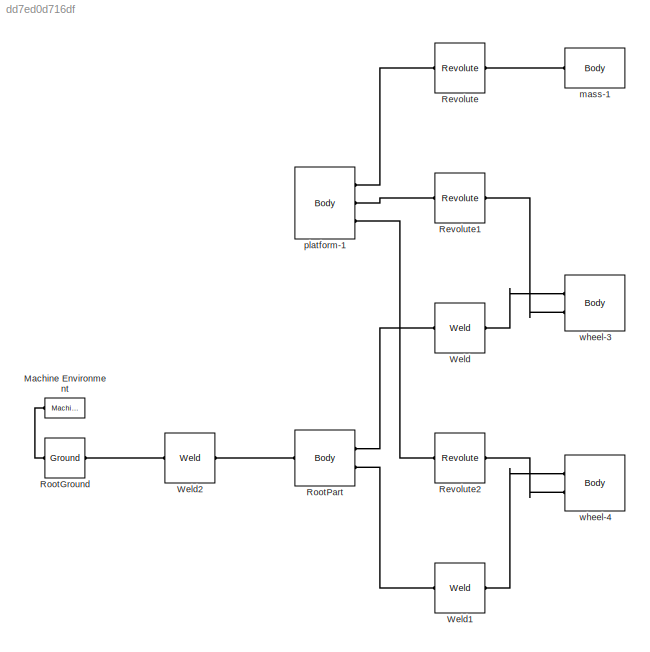
MODEL slx_dd7ed0d716df
KIND model
BLOCK [Reference] Machine Environment  REF=mblibv1/Bodies/Machine
Environment
  AnalysisType = Forward dynamics
  AngularAssemblyTolerance = 1e-3
  AngularAssemblyToleranceUnits = rad
  BodyColorSelMode = Use model default
  BodyVisualizationType = Use model default body geometries
  ClassName = Environment
  ConstraintAbsTolerance = 1e-4
  ConstraintRelTolerance = 1e-4
  ConstraintSolverType = Stabilizing
  DefaultBodyColor = [1 0 0]
  DialogTemplateClass = MECH.MachineEnvironment
  Dimensionality = Auto-detect
  Gravity = [0 -9.81 0]
  GravityAsSignal = off
  GravityUnits = m/s^2
  LinearAssemblyTolerance = 1e-3
  LinearAssemblyToleranceUnits = m
  PerturbationSize = 1e-5
  PhysicalDomain = Mechanical
  PortType = env
  Ports = [0, 0, 0, 0, 0, 0, 1]
  RedundancyAnalysisTolerance = 1e-14
  RedundancyAnalysisToleranceType = Automatically select tolerance
  SourceBlock = mblibv1/Bodies/Machine\nEnvironment
  SourceType = Machine Environment
  StatePerturbationType = Fixed
  SyncWhenCopied = off
  UseRobustSingularityHandling = off
  VisualizeMachine = on
BLOCK [Reference] Revolute  REF=mblibv1/Joints/Revolute
  ClassName = Joint
  CutJoint = off
  DialogClass = JointBlock
  LConnTagsString = __newl0
  MarkAsCut = off
  NumSAPorts = 0
  PMImportedID = mass-1:-:platform-1
  Ports = [0, 0, 0, 0, 0, 1, 1]
  PrimitiveProps = R1$WORLD$[0,0.999884,-0.0152006]$revolute
  Primitives = prismatic
  R1Axis = [0,0.999884,-0.0152006]
  RConnTagsString = __newr0
  SourceBlock = mblibv1/Joints/Revolute
  SourceType = Revolute
  UpdateFromCAD = on
BLOCK [Reference] Revolute1  REF=mblibv1/Joints/Revolute
  ClassName = Joint
  CutJoint = off
  DialogClass = JointBlock
  LConnTagsString = __newl0
  MarkAsCut = off
  NumSAPorts = 0
  PMImportedID = platform-1:-:wheel-3
  Ports = [0, 0, 0, 0, 0, 1, 1]
  PrimitiveProps = R1$WORLD$[1,0,0]$revolute
  Primitives = prismatic
  R1Axis = [1,0,0]
  RConnTagsString = __newr0
  SourceBlock = mblibv1/Joints/Revolute
  SourceType = Revolute
  UpdateFromCAD = on
BLOCK [Reference] Revolute2  REF=mblibv1/Joints/Revolute
  ClassName = Joint
  CutJoint = off
  DialogClass = JointBlock
  LConnTagsString = __newl0
  MarkAsCut = off
  NumSAPorts = 0
  PMImportedID = platform-1:-:wheel-4
  Ports = [0, 0, 0, 0, 0, 1, 1]
  PrimitiveProps = R1$WORLD$[-1,0,0]$revolute
  Primitives = prismatic
  R1Axis = [-1,0,0]
  RConnTagsString = __newr0
  SourceBlock = mblibv1/Joints/Revolute
  SourceType = Revolute
  UpdateFromCAD = on
BLOCK [Reference] RootGround  REF=mblibv1/Bodies/Ground
  ClassName = Ground
  CoordPosition = [0,0.276214,-0.00378102]
  CoordPositionUnits = m
  DialogClass = GroundBlock
  LeftPortType = env
  MachineId = [0 0]
  PMImportedID = RootGround
  PhysicalDomain = Mechanical
  Ports = [0, 0, 0, 0, 0, 1, 1]
  RightPortType = workingframe
  ShowEnvPort = on
  SourceBlock = mblibv1/Bodies/Ground
  SourceType = Ground
  StateVectorMgrId = -1
  UpdateFromCAD = on
  UserDataPersistent = on
BLOCK [Reference] RootPart  REF=mblibv1/Bodies/Body
  AttachedToCS = CS1
  BodyColor = [1;0;0]
  BodyColorSelMode = MACHINE_DEFAULT
  CG = Right$CG$[0 0.276214 -0.00378102]$WORLD$WORLD$m$[1 0 0;0 1 0;0 0 1]$3x3 Transform$rad$WORLD$false$Assem1/RootPart::CG(AUTOGEN)
  CGPos = [0 0.276214 -0.00378102]
  CGRot = [1 0 0;0 1 0;0 0 1]
  CS0Pos = []
  CS0Rot = []
  CS10Pos = []
  CS10Rot = []
  CS11Pos = []
  CS11Rot = []
  CS12Pos = []
  CS12Rot = []
  CS13Pos = []
  CS13Rot = []
  CS14Pos = []
  CS14Rot = []
  CS15Pos = []
  CS15Rot = []
  CS16Pos = []
  CS16Rot = []
  CS17Pos = []
  CS17Rot = []
  CS18Pos = []
  CS18Rot = []
  CS19Pos = []
  CS19Rot = []
  CS1Pos = [0 0 0]
  CS1Rot = [1 0 0;0 1 0;0 0 1]
  CS20Pos = []
  CS20Rot = []
  CS2Pos = [-0.15 0.0275 0]
  CS2Rot = [1 0 0;0 1 0;0 0 1]
  CS3Pos = [0.15 0.0275 0]
  CS3Rot = [1 0 0;0 1 0;0 0 1]
  CS4Pos = [0 0.276214 -0.00378102]
  CS4Rot = [1 0 0;0 1 0;0 0 1]
  CS5Pos = []
  CS5Rot = []
  CS6Pos = []
  CS6Rot = []
  CS7Pos = []
  CS7Rot = []
  CS8Pos = []
  CS8Rot = []
  CS9Pos = []
  CS9Rot = []
  ClassName = Body
  Density = 1
  DensityUnits = kg/m^3
  DensityUse = false
  DialogClass = MechanicalBodyBlock
  GraphicsMode = MACHINE_DEFAULT
  Inertia = [0,0,0;0,0,0;0,0,0]
  InertiaUnits = kg*m^2
  LConnTagsString = CS4
  Mass = 0
  MassUnits = kg
  PMImportedID = Assem1/RootPart
  Ports = [0, 0, 0, 0, 0, 1, 2]
  RConnTagsString = CS2|CS3
  Shape = Cylinder
  ShapeDims = [1 1]
  ShapeUnits = m
  ShapeUse = false
  SourceBlock = mblibv1/Bodies/Body
  SourceType = Body
  UpdateFromCAD = on
  WorkingFrames = Right$CS1$[0 0 0]$WORLD$WORLD$m$[1 0 0;0 1 0;0 0 1]$3x3 Transform$rad$WORLD$false$Assem1/RootPart::CS1(AUTOGEN)#Right$CS2$[-0.15 0.0275 0]$WORLD$WORLD$m$[1 0 0;0 1 0;0 0 1]$3x3 Transform$rad$WORLD$true$Assem1/RootPart:-:wheel-3::Assem1/RootPart(AUTOGEN)#Right$CS3$[0.15 0.0275 0]$WORLD$WORLD$m$[1 0 0;0 1 0;0 0 1]$3x3 Transform$rad$WORLD$true$Assem1/RootPart:-:wheel-4::Assem1/RootPart(AUTOGEN)#Left$...<+146ch>
BLOCK [Reference] Weld  REF=mblibv1/Joints/Weld
  ClassName = Joint
  CutJoint = off
  DialogClass = JointBlock
  LConnTagsString = __newl0
  MarkAsCut = off
  NumSAPorts = 0
  PMImportedID = Assem1/RootPart:-:wheel-3
  Ports = [0, 0, 0, 0, 0, 1, 1]
  PrimitiveProps = W$WORLD$[0.57735,0.57735,0.57735]$weld
  Primitives = weld
  RConnTagsString = __newr0
  SourceBlock = mblibv1/Joints/Weld
  SourceType = Weld
  UpdateFromCAD = on
  WAxis = [0.57735,0.57735,0.57735]
BLOCK [Reference] Weld1  REF=mblibv1/Joints/Weld
  ClassName = Joint
  CutJoint = off
  DialogClass = JointBlock
  LConnTagsString = __newl0
  MarkAsCut = off
  NumSAPorts = 0
  PMImportedID = Assem1/RootPart:-:wheel-4
  Ports = [0, 0, 0, 0, 0, 1, 1]
  PrimitiveProps = W$WORLD$[0.57735,0.57735,0.57735]$weld
  Primitives = weld
  RConnTagsString = __newr0
  SourceBlock = mblibv1/Joints/Weld
  SourceType = Weld
  UpdateFromCAD = on
  WAxis = [0.57735,0.57735,0.57735]
BLOCK [Reference] Weld2  REF=mblibv1/Joints/Weld
  ClassName = Joint
  CutJoint = off
  DialogClass = JointBlock
  LConnTagsString = __newl0
  MarkAsCut = off
  NumSAPorts = 0
  PMImportedID = Assem1/RootPart:-:RootGround
  Ports = [0, 0, 0, 0, 0, 1, 1]
  PrimitiveProps = W$WORLD$[0.57735,0.57735,0.57735]$weld
  Primitives = weld
  RConnTagsString = __newr0
  SourceBlock = mblibv1/Joints/Weld
  SourceType = Weld
  UpdateFromCAD = on
  WAxis = [0.57735,0.57735,0.57735]
BLOCK [Reference] mass-1  REF=mblibv1/Bodies/Body
  AttachedToCS = CS1
  BodyColor = [0.647059;0.619608;0.588235]
  BodyColorSelMode = COLORPALETTE
  CG = Right$CG$[0 0.569937 -0.0082463]$WORLD$WORLD$m$[1 0 0;0 -0.999884 -0.0152006;0 0.0152006 -0.999884]$3x3 Transform$rad$WORLD$false$mass-1::CG(AUTOGEN)
  CGPos = [0 0.569937 -0.0082463]
  CGRot = [1 0 0;0 -0.999884 -0.0152006;0 0.0152006 -0.999884]
  CS0Pos = []
  CS0Rot = []
  CS10Pos = []
  CS10Rot = []
  CS11Pos = []
  CS11Rot = []
  CS12Pos = []
  CS12Rot = []
  CS13Pos = []
  CS13Rot = []
  CS14Pos = []
  CS14Rot = []
  CS15Pos = []
  CS15Rot = []
  CS16Pos = []
  CS16Rot = []
  CS17Pos = []
  CS17Rot = []
  CS18Pos = []
  CS18Rot = []
  CS19Pos = []
  CS19Rot = []
  CS1Pos = [0 0.584936 -0.00847431]
  CS1Rot = [1 0 0;0 -0.999884 -0.0152006;0 0.0152006 -0.999884]
  CS20Pos = []
  CS20Rot = []
  CS2Pos = [0 0.554939 -0.00801829]
  CS2Rot = [1 0 0;0 1 0;0 0 1]
  CS3Pos = []
  CS3Rot = []
  CS4Pos = []
  CS4Rot = []
  CS5Pos = []
  CS5Rot = []
  CS6Pos = []
  CS6Rot = []
  CS7Pos = []
  CS7Rot = []
  CS8Pos = []
  CS8Rot = []
  CS9Pos = []
  CS9Rot = []
  ClassName = Body
  Density = 1
  DensityUnits = kg/m^3
  DensityUse = false
  DialogClass = MechanicalBodyBlock
  GraphicsFileName = Assem1 - mass-1.STL
  GraphicsMode = GFXFILE
  Inertia = [0.000433605,0,0;0,0.000718103,0;0,0,0.000433605]
  InertiaUnits = kg*m^2
  LConnTagsString = CS2
  Mass = 0.994043
  MassUnits = kg
  PMImportedID = mass-1
  Ports = [0, 0, 0, 0, 0, 1]
  Shape = Cylinder
  ShapeDims = [1 1]
  ShapeUnits = m
  ShapeUse = false
  SourceBlock = mblibv1/Bodies/Body
  SourceType = Body
  UpdateFromCAD = on
  WorkingFrames = Right$CS1$[0 0.584936 -0.00847431]$WORLD$WORLD$m$[1 0 0;0 -0.999884 -0.0152006;0 0.0152006 -0.999884]$3x3 Transform$rad$WORLD$false$mass-1::CS1(AUTOGEN)#Left$CS2$[0 0.554939 -0.00801829]$WORLD$WORLD$m$[1 0 0;0 1 0;0 0 1]$3x3 Transform$rad$WORLD$true$mass-1:-:platform-1::mass-1(AUTOGEN)
BLOCK [Reference] platform-1  REF=mblibv1/Bodies/Body
  AttachedToCS = CS1
  BodyColor = [0.866667;0.909804;1]
  BodyColorSelMode = COLORPALETTE
  CG = Right$CG$[0 0.16518 -0.00209305]$WORLD$WORLD$m$[1 0 0;0 -0.999884 -0.0152006;0 0.0152006 -0.999884]$3x3 Transform$rad$WORLD$false$platform-1::CG(AUTOGEN)
  CGPos = [0 0.16518 -0.00209305]
  CGRot = [1 0 0;0 -0.999884 -0.0152006;0 0.0152006 -0.999884]
  CS0Pos = []
  CS0Rot = []
  CS10Pos = []
  CS10Rot = []
  CS11Pos = []
  CS11Rot = []
  CS12Pos = []
  CS12Rot = []
  CS13Pos = []
  CS13Rot = []
  CS14Pos = []
  CS14Rot = []
  CS15Pos = []
  CS15Rot = []
  CS16Pos = []
  CS16Rot = []
  CS17Pos = []
  CS17Rot = []
  CS18Pos = []
  CS18Rot = []
  CS19Pos = []
  CS19Rot = []
  CS1Pos = [0 0.0549968 -0.000418015]
  CS1Rot = [1 0 0;0 -0.999884 -0.0152006;0 0.0152006 -0.999884]
  CS20Pos = []
  CS20Rot = []
  CS2Pos = [0 0.554939 -0.00801829]
  CS2Rot = [1 0 0;0 1 0;0 0 1]
  CS3Pos = [-0.165 0.0275 0]
  CS3Rot = [1 0 0;0 1 0;0 0 1]
  CS4Pos = [0.165 0.0275 0]
  CS4Rot = [1 0 0;0 1 0;0 0 1]
  CS5Pos = []
  CS5Rot = []
  CS6Pos = []
  CS6Rot = []
  CS7Pos = []
  CS7Rot = []
  CS8Pos = []
  CS8Rot = []
  CS9Pos = []
  CS9Rot = []
  ClassName = Body
  Density = 1
  DensityUnits = kg/m^3
  DensityUse = false
  DialogClass = MechanicalBodyBlock
  GraphicsFileName = Assem1 - platform-1.STL
  GraphicsMode = GFXFILE
  Inertia = [0.0247914,0,0;0,0.00462358,0;0,0,0.028624]
  InertiaUnits = kg*m^2
  Mass = 0.91444
  MassUnits = kg
  PMImportedID = platform-1
  Ports = [0, 0, 0, 0, 0, 0, 3]
  RConnTagsString = CS2|CS3|CS4
  Shape = Cylinder
  ShapeDims = [1 1]
  ShapeUnits = m
  ShapeUse = false
  SourceBlock = mblibv1/Bodies/Body
  SourceType = Body
  UpdateFromCAD = on
  WorkingFrames = Right$CS1$[0 0.0549968 -0.000418015]$WORLD$WORLD$m$[1 0 0;0 -0.999884 -0.0152006;0 0.0152006 -0.999884]$3x3 Transform$rad$WORLD$false$platform-1::CS1(AUTOGEN)#Right$CS2$[0 0.554939 -0.00801829]$WORLD$WORLD$m$[1 0 0;0 1 0;0 0 1]$3x3 Transform$rad$WORLD$true$mass-1:-:platform-1::platform-1(AUTOGEN)#Right$CS3$[-0.165 0.0275 0]$WORLD$WORLD$m$[1 0 0;0 1 0;0 0 1]$3x3 Transform$rad$WORLD$true$platform-1:...<+162ch>
BLOCK [Reference] wheel-3  REF=mblibv1/Bodies/Body
  AttachedToCS = CS1
  BodyColor = [0.294118;0.294118;0.294118]
  BodyColorSelMode = COLORPALETTE
  CG = Right$CG$[-0.15 0.0275 0]$WORLD$WORLD$m$[1 0 0;0 1 0;0 0 1]$3x3 Transform$rad$WORLD$false$wheel-3::CG(AUTOGEN)
  CGPos = [-0.15 0.0275 0]
  CGRot = [1 0 0;0 1 0;0 0 1]
  CS0Pos = []
  CS0Rot = []
  CS10Pos = []
  CS10Rot = []
  CS11Pos = []
  CS11Rot = []
  CS12Pos = []
  CS12Rot = []
  CS13Pos = []
  CS13Rot = []
  CS14Pos = []
  CS14Rot = []
  CS15Pos = []
  CS15Rot = []
  CS16Pos = []
  CS16Rot = []
  CS17Pos = []
  CS17Rot = []
  CS18Pos = []
  CS18Rot = []
  CS19Pos = []
  CS19Rot = []
  CS1Pos = [-0.165 0.0275 0]
  CS1Rot = [1 0 0;0 1 0;0 0 1]
  CS20Pos = []
  CS20Rot = []
  CS2Pos = [-0.15 0.0275 0]
  CS2Rot = [1 0 0;0 1 0;0 0 1]
  CS3Pos = [-0.165 0.0275 0]
  CS3Rot = [1 0 0;0 1 0;0 0 1]
  CS4Pos = []
  CS4Rot = []
  CS5Pos = []
  CS5Rot = []
  CS6Pos = []
  CS6Rot = []
  CS7Pos = []
  CS7Rot = []
  CS8Pos = []
  CS8Rot = []
  CS9Pos = []
  CS9Rot = []
  ClassName = Body
  Density = 1
  DensityUnits = kg/m^3
  DensityUse = false
  DialogClass = MechanicalBodyBlock
  GraphicsFileName = Assem1 - wheel-3.STL
  GraphicsMode = GFXFILE
  Inertia = [0.00079034,0,0;0,0.00042234,0;0,0,0.00042234]
  InertiaUnits = kg*m^2
  LConnTagsString = CS2|CS3
  Mass = 0.38285
  MassUnits = kg
  PMImportedID = wheel-3
  Ports = [0, 0, 0, 0, 0, 2]
  Shape = Cylinder
  ShapeDims = [1 1]
  ShapeUnits = m
  ShapeUse = false
  SourceBlock = mblibv1/Bodies/Body
  SourceType = Body
  UpdateFromCAD = on
  WorkingFrames = Right$CS1$[-0.165 0.0275 0]$WORLD$WORLD$m$[1 0 0;0 1 0;0 0 1]$3x3 Transform$rad$WORLD$false$wheel-3::CS1(AUTOGEN)#Left$CS2$[-0.15 0.0275 0]$WORLD$WORLD$m$[1 0 0;0 1 0;0 0 1]$3x3 Transform$rad$WORLD$true$Assem1/RootPart:-:wheel-3::wheel-3(AUTOGEN)#Left$CS3$[-0.165 0.0275 0]$WORLD$WORLD$m$[1 0 0;0 1 0;0 0 1]$3x3 Transform$rad$WORLD$true$platform-1:-:wheel-3::wheel-3(AUTOGEN)
BLOCK [Reference] wheel-4  REF=mblibv1/Bodies/Body
  AttachedToCS = CS1
  BodyColor = [0.294118;0.294118;0.294118]
  BodyColorSelMode = COLORPALETTE
  CG = Right$CG$[0.15 0.0275 0]$WORLD$WORLD$m$[1 0 0;0 1 0;0 0 1]$3x3 Transform$rad$WORLD$false$wheel-4::CG(AUTOGEN)
  CGPos = [0.15 0.0275 0]
  CGRot = [1 0 0;0 1 0;0 0 1]
  CS0Pos = []
  CS0Rot = []
  CS10Pos = []
  CS10Rot = []
  CS11Pos = []
  CS11Rot = []
  CS12Pos = []
  CS12Rot = []
  CS13Pos = []
  CS13Rot = []
  CS14Pos = []
  CS14Rot = []
  CS15Pos = []
  CS15Rot = []
  CS16Pos = []
  CS16Rot = []
  CS17Pos = []
  CS17Rot = []
  CS18Pos = []
  CS18Rot = []
  CS19Pos = []
  CS19Rot = []
  CS1Pos = [0.135 0.0275 0]
  CS1Rot = [1 0 0;0 1 0;0 0 1]
  CS20Pos = []
  CS20Rot = []
  CS2Pos = [0.15 0.0275 0]
  CS2Rot = [1 0 0;0 1 0;0 0 1]
  CS3Pos = [0.165 0.0275 0]
  CS3Rot = [1 0 0;0 1 0;0 0 1]
  CS4Pos = []
  CS4Rot = []
  CS5Pos = []
  CS5Rot = []
  CS6Pos = []
  CS6Rot = []
  CS7Pos = []
  CS7Rot = []
  CS8Pos = []
  CS8Rot = []
  CS9Pos = []
  CS9Rot = []
  ClassName = Body
  Density = 1
  DensityUnits = kg/m^3
  DensityUse = false
  DialogClass = MechanicalBodyBlock
  GraphicsFileName = Assem1 - wheel-4.STL
  GraphicsMode = GFXFILE
  Inertia = [0.00079034,0,0;0,0.00042234,0;0,0,0.00042234]
  InertiaUnits = kg*m^2
  LConnTagsString = CS2|CS3
  Mass = 0.38285
  MassUnits = kg
  PMImportedID = wheel-4
  Ports = [0, 0, 0, 0, 0, 2]
  Shape = Cylinder
  ShapeDims = [1 1]
  ShapeUnits = m
  ShapeUse = false
  SourceBlock = mblibv1/Bodies/Body
  SourceType = Body
  UpdateFromCAD = on
  WorkingFrames = Right$CS1$[0.135 0.0275 0]$WORLD$WORLD$m$[1 0 0;0 1 0;0 0 1]$3x3 Transform$rad$WORLD$false$wheel-4::CS1(AUTOGEN)#Left$CS2$[0.15 0.0275 0]$WORLD$WORLD$m$[1 0 0;0 1 0;0 0 1]$3x3 Transform$rad$WORLD$true$Assem1/RootPart:-:wheel-4::wheel-4(AUTOGEN)#Left$CS3$[0.165 0.0275 0]$WORLD$WORLD$m$[1 0 0;0 1 0;0 0 1]$3x3 Transform$rad$WORLD$true$platform-1:-:wheel-4::wheel-4(AUTOGEN)
PLINE Machine Environment:RConn1 -- RootGround:LConn1
PLINE Revolute1:LConn1 -- platform-1:RConn2
PLINE Revolute1:RConn1 -- wheel-3:LConn2
PLINE Revolute2:LConn1 -- platform-1:RConn3
PLINE Revolute2:RConn1 -- wheel-4:LConn2
PLINE Revolute:LConn1 -- platform-1:RConn1
PLINE Revolute:RConn1 -- mass-1:LConn1
PLINE RootGround:RConn1 -- Weld2:LConn1
PLINE RootPart:LConn1 -- Weld2:RConn1
PLINE RootPart:RConn1 -- Weld:LConn1
PLINE RootPart:RConn2 -- Weld1:LConn1
PLINE Weld1:RConn1 -- wheel-4:LConn1
PLINE Weld:RConn1 -- wheel-3:LConn1
